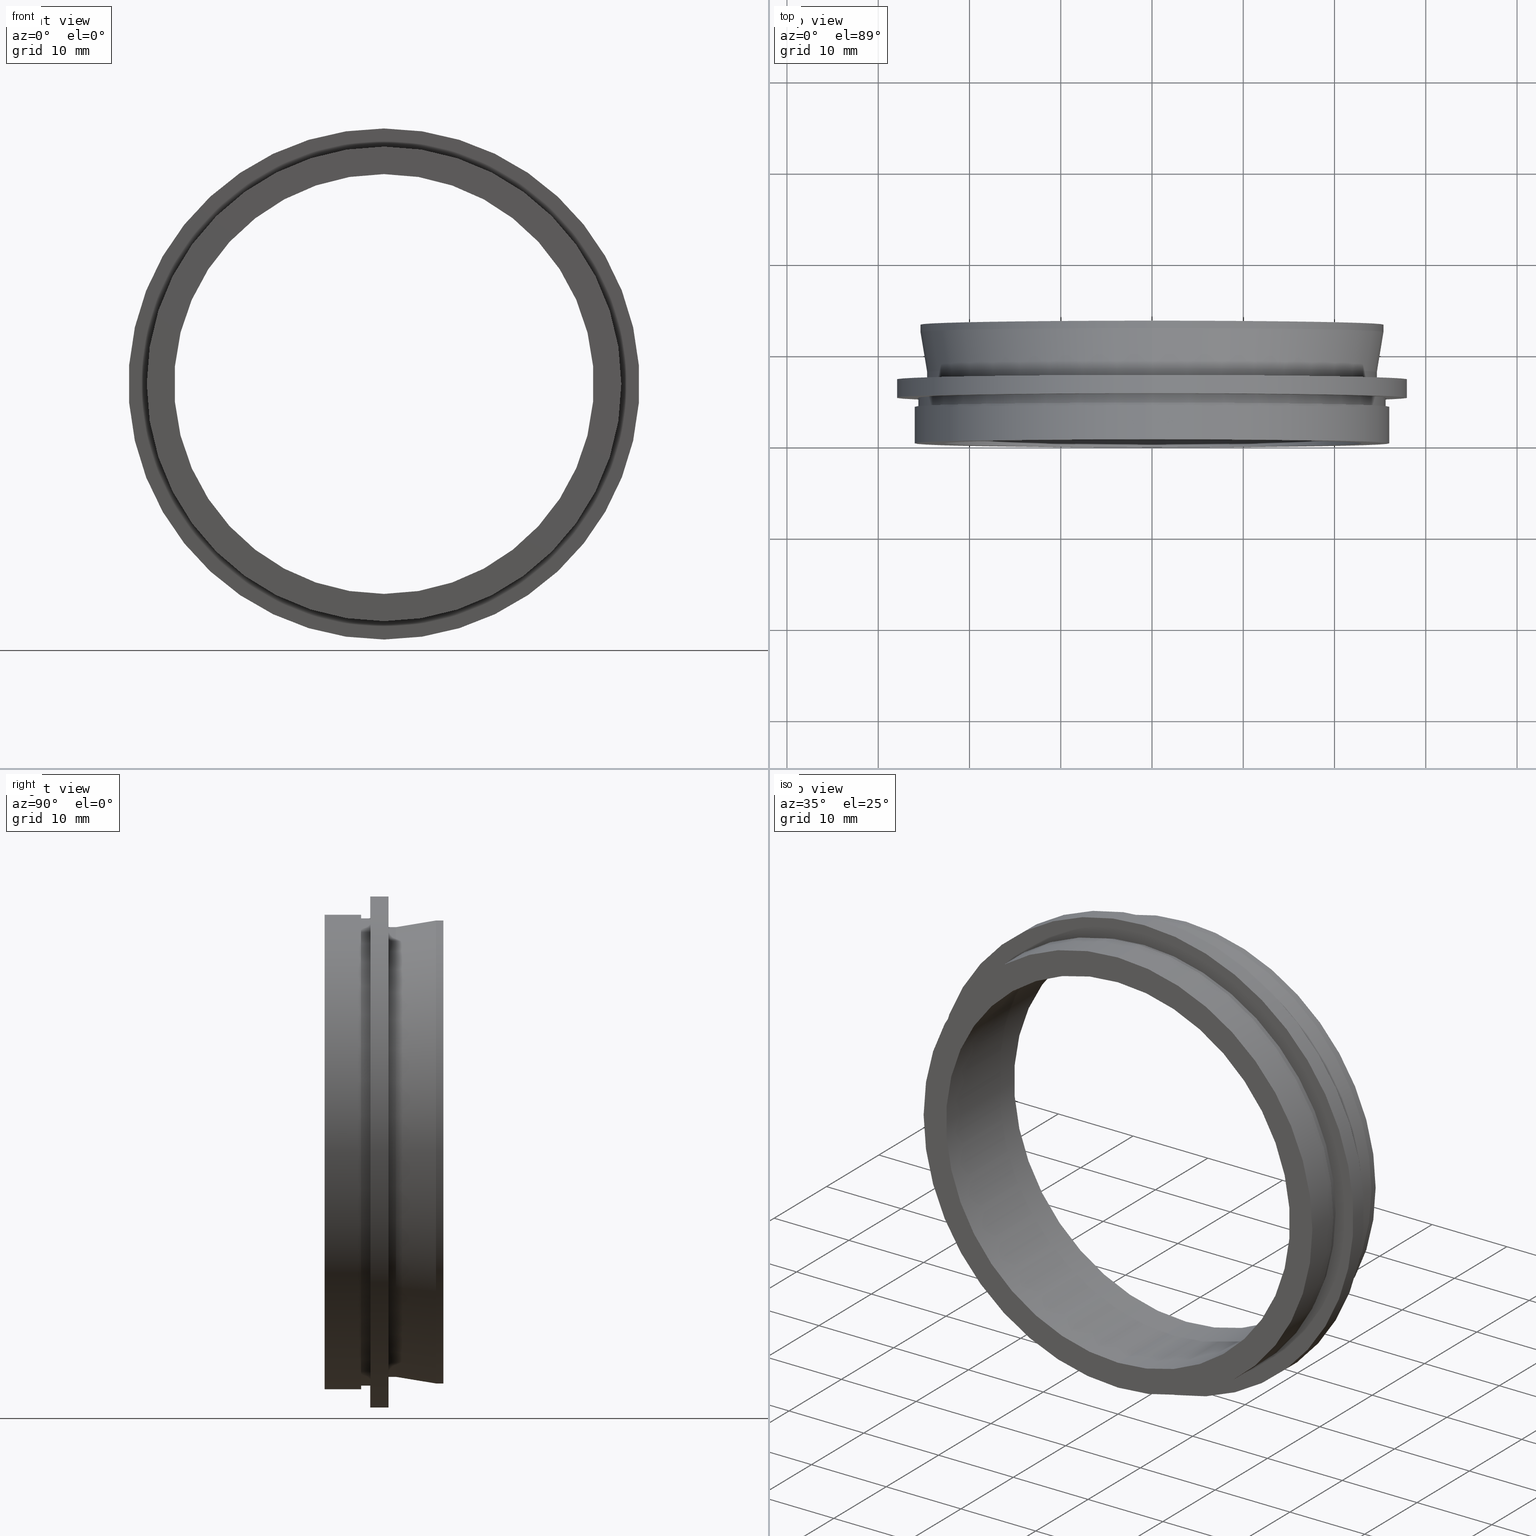
[diagram: canonical four-view strip — front | top / right | iso, engineering-drawing reading convention]
A machine part, canonical four-view strip (front | top / right | iso — engineering-drawing reading convention). The complete STEP part file that produces these views, byte-faithful:
ISO-10303-21;
HEADER;
FILE_DESCRIPTION (( 'STEP AP203' ),
    '1' );
FILE_NAME ('510001.STEP',
    '2019-09-29T08:14:22',
    ( '' ),
    ( '' ),
    'SwSTEP 2.0',
    'SolidWorks 2016',
    '' );
FILE_SCHEMA (( 'CONFIG_CONTROL_DESIGN' ));
ENDSEC;

DATA;
#1 = LINE ( 'NONE', #381, #542 ) ;
#2 = DIRECTION ( 'NONE',  ( -0.0000000000000000000, -1.000000000000000000, -0.0000000000000000000 ) ) ;
#3 = EDGE_CURVE ( 'NONE', #626, #334, #116, .T. ) ;
#4 = ORIENTED_EDGE ( 'NONE', *, *, #171, .F. ) ;
#5 = APPROVAL_PERSON_ORGANIZATION ( #179, #421, #40 ) ;
#6 = ORIENTED_EDGE ( 'NONE', *, *, #400, .T. ) ;
#7 = CIRCLE ( 'NONE', #582, 28.00000000000000000 ) ;
#8 = CARTESIAN_POINT ( 'NONE',  ( 0.0000000000000000000, 13.00000000000000200, 0.0000000000000000000 ) ) ;
#9 = ADVANCED_FACE ( 'NONE', ( #644 ), #365, .T. ) ;
#10 = LOCAL_TIME ( 16, 14, 22.00000000000000000, #240 ) ;
#11 = CC_DESIGN_APPROVAL ( #421, ( #442 ) ) ;
#12 = EDGE_CURVE ( 'NONE', #626, #457, #235, .T. ) ;
#13 = DIRECTION ( 'NONE',  ( -0.0000000000000000000, -1.000000000000000000, -0.0000000000000000000 ) ) ;
#14 = VERTEX_POINT ( 'NONE', #250 ) ;
#15 = CYLINDRICAL_SURFACE ( 'NONE', #39, 24.63500000000000200 ) ;
#16 = DIRECTION ( 'NONE',  ( 0.0000000000000000000, 0.0000000000000000000, -1.000000000000000000 ) ) ;
#17 = AXIS2_PLACEMENT_3D ( 'NONE', #502, #602, #190 ) ;
#18 = DIRECTION ( 'NONE',  ( 0.0000000000000000000, 0.0000000000000000000, -1.000000000000000000 ) ) ;
#19 = CARTESIAN_POINT ( 'NONE',  ( 0.0000000000000000000, 0.0000000000000000000, 0.0000000000000000000 ) ) ;
#20 = APPROVAL ( #201, 'δָ��' ) ;
#21 = ORIENTED_EDGE ( 'NONE', *, *, #272, .F. ) ;
#22 = CARTESIAN_POINT ( 'NONE',  ( 0.0000000000000000000, 0.0000000000000000000, 0.0000000000000000000 ) ) ;
#23 = PERSON_AND_ORGANIZATION ( #370, #165 ) ;
#24 = ORIENTED_EDGE ( 'NONE', *, *, #496, .F. ) ;
#25 = CIRCLE ( 'NONE', #492, 23.00000000000000000 ) ;
#26 = UNCERTAINTY_MEASURE_WITH_UNIT (LENGTH_MEASURE( 1.000000000000000100E-005 ), #31, 'distance_accuracy_value', 'NONE');
#27 = DIRECTION ( 'NONE',  ( -0.0000000000000000000, -1.000000000000000000, -0.0000000000000000000 ) ) ;
#28 = DIRECTION ( 'NONE',  ( -0.0000000000000000000, -1.000000000000000000, -0.0000000000000000000 ) ) ;
#29 = EDGE_CURVE ( 'NONE', #177, #334, #99, .T. ) ;
#30 = CARTESIAN_POINT ( 'NONE',  ( 0.0000000000000000000, 12.20000000000000100, 0.0000000000000000000 ) ) ;
#31 =( LENGTH_UNIT ( ) NAMED_UNIT ( * ) SI_UNIT ( .MILLI., .METRE. ) );
#32 = CARTESIAN_POINT ( 'NONE',  ( 0.0000000000000000000, 12.20000000000000100, 0.0000000000000000000 ) ) ;
#33 = MECHANICAL_CONTEXT ( 'NONE', #454, 'mechanical' ) ;
#34 = VERTEX_POINT ( 'NONE', #418 ) ;
#35 = PLANE ( 'NONE',  #73 ) ;
#36 = SECURITY_CLASSIFICATION_LEVEL ( 'unclassified' ) ;
#37 = CYLINDRICAL_SURFACE ( 'NONE', #613, 25.60000000000000100 ) ;
#38 = DIRECTION ( 'NONE',  ( 0.0000000000000000000, 0.0000000000000000000, -1.000000000000000000 ) ) ;
#39 = AXIS2_PLACEMENT_3D ( 'NONE', #61, #174, #276 ) ;
#40 = APPROVAL_ROLE ( '' ) ;
#41 = MECHANICAL_CONTEXT ( 'NONE', #82, 'mechanical' ) ;
#42 = AXIS2_PLACEMENT_3D ( 'NONE', #309, #570, #329 ) ;
#43 = EDGE_LOOP ( 'NONE', ( #325, #534 ) ) ;
#44 = ORIENTED_EDGE ( 'NONE', *, *, #113, .T. ) ;
#45 = FACE_OUTER_BOUND ( 'NONE', #56, .T. ) ;
#46 = APPROVAL_STATUS ( 'not_yet_approved' ) ;
#47 = DIRECTION ( 'NONE',  ( -0.0000000000000000000, -1.000000000000000000, -0.0000000000000000000 ) ) ;
#48 = CC_DESIGN_DATE_AND_TIME_ASSIGNMENT ( #344, #567, ( #519 ) ) ;
#49 = ORIENTED_EDGE ( 'NONE', *, *, #237, .F. ) ;
#50 = EDGE_CURVE ( 'NONE', #107, #177, #515, .T. ) ;
#51 = ADVANCED_FACE ( 'NONE', ( #498 ), #150, .T. ) ;
#52 = DIRECTION ( 'NONE',  ( -0.0000000000000000000, -1.000000000000000000, -0.0000000000000000000 ) ) ;
#53 = DIRECTION ( 'NONE',  ( 0.0000000000000000000, 0.0000000000000000000, -1.000000000000000000 ) ) ;
#54 = AXIS2_PLACEMENT_3D ( 'NONE', #609, #463, #204 ) ;
#55 = ORIENTED_EDGE ( 'NONE', *, *, #400, .F. ) ;
#56 = EDGE_LOOP ( 'NONE', ( #70, #269 ) ) ;
#57 = CIRCLE ( 'NONE', #125, 26.00000000000000000 ) ;
#58 = CC_DESIGN_APPROVAL ( #20, ( #593 ) ) ;
#59 = DIRECTION ( 'NONE',  ( -0.0000000000000000000, -1.000000000000000000, -0.0000000000000000000 ) ) ;
#60 = EDGE_CURVE ( 'NONE', #404, #548, #332, .T. ) ;
#61 = CARTESIAN_POINT ( 'NONE',  ( 0.0000000000000000000, 0.0000000000000000000, 0.0000000000000000000 ) ) ;
#62 = ORIENTED_EDGE ( 'NONE', *, *, #134, .T. ) ;
#63 = ORIENTED_EDGE ( 'NONE', *, *, #535, .F. ) ;
#64 = CARTESIAN_POINT ( 'NONE',  ( -28.00000000000000000, 5.000000000000002700, 0.0000000000000000000 ) ) ;
#65 = PERSON_AND_ORGANIZATION ( #370, #165 ) ;
#66 = LINE ( 'NONE', #508, #198 ) ;
#67 = CARTESIAN_POINT ( 'NONE',  ( 0.0000000000000000000, 0.0000000000000000000, -25.60000000000000100 ) ) ;
#68 = DIRECTION ( 'NONE',  ( 0.0000000000000000000, 0.0000000000000000000, -1.000000000000000000 ) ) ;
#69 = AXIS2_PLACEMENT_3D ( 'NONE', #22, #497, #68 ) ;
#70 = ORIENTED_EDGE ( 'NONE', *, *, #535, .T. ) ;
#71 = EDGE_LOOP ( 'NONE', ( #565, #262, #213, #397 ) ) ;
#72 = LINE ( 'NONE', #77, #277 ) ;
#73 = AXIS2_PLACEMENT_3D ( 'NONE', #507, #443, #649 ) ;
#74 = CALENDAR_DATE ( 2019, 29, 9 ) ;
#75 = CARTESIAN_POINT ( 'NONE',  ( 0.0000000000000000000, 0.0000000000000000000, 0.0000000000000000000 ) ) ;
#76 = DIRECTION ( 'NONE',  ( -0.0000000000000000000, -1.000000000000000000, -0.0000000000000000000 ) ) ;
#77 = CARTESIAN_POINT ( 'NONE',  ( 3.184081677783118200E-015, 0.0000000000000000000, 26.00000000000000000 ) ) ;
#78 = VECTOR ( 'NONE', #401, 1000.000000000000000 ) ;
#79 = PERSON_AND_ORGANIZATION_ROLE ( 'creator' ) ;
#80 = ORIENTED_EDGE ( 'NONE', *, *, #29, .F. ) ;
#81 = CIRCLE ( 'NONE', #403, 28.00000000000000000 ) ;
#82 = APPLICATION_CONTEXT ( 'configuration controlled 3d designs of mechanical parts and assemblies' ) ;
#83 = AXIS2_PLACEMENT_3D ( 'NONE', #428, #59, #426 ) ;
#84 = COORDINATED_UNIVERSAL_TIME_OFFSET ( 8, 0, .AHEAD. ) ;
#85 = CARTESIAN_POINT ( 'NONE',  ( 0.0000000000000000000, 7.000000000000003600, -24.63500000000000200 ) ) ;
#86 = DATE_TIME_ROLE ( 'classification_date' ) ;
#87 = CARTESIAN_POINT ( 'NONE',  ( 0.0000000000000000000, 0.0000000000000000000, -23.00000000000000000 ) ) ;
#88 = CARTESIAN_POINT ( 'NONE',  ( 0.0000000000000000000, -8.673617379884035500E-016, 0.0000000000000000000 ) ) ;
#89 = AXIS2_PLACEMENT_3D ( 'NONE', #664, #47, #412 ) ;
#90 = VERTEX_POINT ( 'NONE', #104 ) ;
#91 = DIRECTION ( 'NONE',  ( -0.0000000000000000000, -1.000000000000000000, -0.0000000000000000000 ) ) ;
#92 = VERTEX_POINT ( 'NONE', #624 ) ;
#93 = FACE_BOUND ( 'NONE', #358, .T. ) ;
#94 = CARTESIAN_POINT ( 'NONE',  ( 0.0000000000000000000, 0.0000000000000000000, 0.0000000000000000000 ) ) ;
#95 = CC_DESIGN_SECURITY_CLASSIFICATION ( #593, ( #575 ) ) ;
#96 = CALENDAR_DATE ( 2019, 29, 9 ) ;
#97 = APPROVAL_ROLE ( '' ) ;
#98 = PRODUCT_RELATED_PRODUCT_CATEGORY ( 'detail', '', ( #103 ) ) ;
#99 = CIRCLE ( 'NONE', #652, 25.36499999999999800 ) ;
#100 = EDGE_CURVE ( 'NONE', #588, #108, #109, .T. ) ;
#101 = CIRCLE ( 'NONE', #478, 23.00000000000000000 ) ;
#102 = ADVANCED_FACE ( 'NONE', ( #573 ), #197, .T. ) ;
#103 = PRODUCT ( '510001', '510001', '', ( #41 ) ) ;
#104 = CARTESIAN_POINT ( 'NONE',  ( 0.0000000000000000000, 5.000000000000001800, -25.60000000000000100 ) ) ;
#105 = ADVANCED_BREP_SHAPE_REPRESENTATION ( '510001', ( #419, #321 ), #379 ) ;
#106 = CARTESIAN_POINT ( 'NONE',  ( 3.135095805817224400E-015, 0.0000000000000000000, 25.60000000000000100 ) ) ;
#107 = VERTEX_POINT ( 'NONE', #356 ) ;
#108 = VERTEX_POINT ( 'NONE', #530 ) ;
#109 = CIRCLE ( 'NONE', #641, 26.00000000000000000 ) ;
#110 = EDGE_CURVE ( 'NONE', #108, #588, #549, .T. ) ;
#111 = ADVANCED_FACE ( 'NONE', ( #270, #537 ), #305, .F. ) ;
#112 = PERSON_AND_ORGANIZATION ( #370, #165 ) ;
#113 = EDGE_CURVE ( 'NONE', #14, #92, #388, .T. ) ;
#114 = PLANE ( 'NONE',  #586 ) ;
#115 = DATE_AND_TIME ( #253, #394 ) ;
#116 = LINE ( 'NONE', #155, #78 ) ;
#117 = ORIENTED_EDGE ( 'NONE', *, *, #237, .T. ) ;
#118 = FACE_OUTER_BOUND ( 'NONE', #654, .T. ) ;
#119 = ADVANCED_FACE ( 'NONE', ( #460 ), #343, .F. ) ;
#120 = CARTESIAN_POINT ( 'NONE',  ( 0.0000000000000000000, 7.800000000000005200, 24.63500000000000200 ) ) ;
#121 = AXIS2_PLACEMENT_3D ( 'NONE', #145, #455, #453 ) ;
#122 = DESIGN_CONTEXT ( 'detailed design', #149, 'design' ) ;
#123 = ORIENTED_EDGE ( 'NONE', *, *, #369, .T. ) ;
#124 = ORIENTED_EDGE ( 'NONE', *, *, #662, .T. ) ;
#125 = AXIS2_PLACEMENT_3D ( 'NONE', #335, #241, #289 ) ;
#126 = DIRECTION ( 'NONE',  ( -0.0000000000000000000, -1.000000000000000000, -0.0000000000000000000 ) ) ;
#127 = PRODUCT_RELATED_PRODUCT_CATEGORY ( 'detail', '', ( #469 ) ) ;
#128 = PERSON_AND_ORGANIZATION ( #370, #165 ) ;
#129 = EDGE_LOOP ( 'NONE', ( #24, #541, #660, #21 ) ) ;
#130 = CALENDAR_DATE ( 2019, 29, 9 ) ;
#131 = ORIENTED_EDGE ( 'NONE', *, *, #448, .F. ) ;
#132 = FACE_OUTER_BOUND ( 'NONE', #292, .T. ) ;
#133 = DIRECTION ( 'NONE',  ( 0.0000000000000000000, 0.0000000000000000000, -1.000000000000000000 ) ) ;
#134 = EDGE_CURVE ( 'NONE', #548, #578, #256, .T. ) ;
#135 = DIRECTION ( 'NONE',  ( 0.0000000000000000000, 0.0000000000000000000, -1.000000000000000000 ) ) ;
#136 = DIRECTION ( 'NONE',  ( -0.0000000000000000000, -1.000000000000000000, -0.0000000000000000000 ) ) ;
#137 = DATE_TIME_ROLE ( 'creation_date' ) ;
#138 = CARTESIAN_POINT ( 'NONE',  ( 0.0000000000000000000, 13.00000000000000200, -25.36499999999999800 ) ) ;
#139 = CARTESIAN_POINT ( 'NONE',  ( 0.0000000000000000000, 0.0000000000000000000, 0.0000000000000000000 ) ) ;
#140 = VERTEX_POINT ( 'NONE', #557 ) ;
#141 = CIRCLE ( 'NONE', #512, 28.00000000000000000 ) ;
#142 = CARTESIAN_POINT ( 'NONE',  ( 0.0000000000000000000, 4.000000000000001800, 0.0000000000000000000 ) ) ;
#143 = PERSON_AND_ORGANIZATION_ROLE ( 'design_owner' ) ;
#144 = AXIS2_PLACEMENT_3D ( 'NONE', #290, #604, #651 ) ;
#145 = CARTESIAN_POINT ( 'NONE',  ( 0.0000000000000000000, 5.000000000000001800, 0.0000000000000000000 ) ) ;
#146 = AXIS2_PLACEMENT_3D ( 'NONE', #32, #245, #606 ) ;
#147 = APPROVAL_DATE_TIME ( #346, #158 ) ;
#148 = ORIENTED_EDGE ( 'NONE', *, *, #648, .F. ) ;
#149 = APPLICATION_CONTEXT ( 'configuration controlled 3d designs of mechanical parts and assemblies' ) ;
#150 = CYLINDRICAL_SURFACE ( 'NONE', #436, 24.63500000000000200 ) ;
#151 = CYLINDRICAL_SURFACE ( 'NONE', #175, 28.00000000000000000 ) ;
#152 = LOCAL_TIME ( 16, 14, 22.00000000000000000, #284 ) ;
#153 = APPLICATION_PROTOCOL_DEFINITION ( 'international standard', 'config_control_design', 1994, #149 ) ;
#154 = PERSON_AND_ORGANIZATION ( #370, #165 ) ;
#155 = CARTESIAN_POINT ( 'NONE',  ( 3.106316606037261500E-015, 12.20000000000000100, -25.36499999999999800 ) ) ;
#156 = ADVANCED_FACE ( 'NONE', ( #118 ), #293, .T. ) ;
#157 = DIRECTION ( 'NONE',  ( 0.0000000000000000000, 0.0000000000000000000, -1.000000000000000000 ) ) ;
#158 = APPROVAL ( #446, 'δָ��' ) ;
#159 = VERTEX_POINT ( 'NONE', #559 ) ;
#160 = CIRCLE ( 'NONE', #252, 24.63500000000000200 ) ;
#161 = ADVANCED_FACE ( 'NONE', ( #640 ), #491, .F. ) ;
#162 = DIRECTION ( 'NONE',  ( -0.0000000000000000000, -1.000000000000000000, -0.0000000000000000000 ) ) ;
#163 = EDGE_CURVE ( 'NONE', #611, #499, #57, .T. ) ;
#164 = ORIENTED_EDGE ( 'NONE', *, *, #29, .T. ) ;
#165 = ORGANIZATION ( 'δָ��', 'δָ��', '' ) ;
#166 = EDGE_LOOP ( 'NONE', ( #214, #639 ) ) ;
#167 = VECTOR ( 'NONE', #430, 1000.000000000000000 ) ;
#168 = CARTESIAN_POINT ( 'NONE',  ( 0.0000000000000000000, 4.000000000000000900, 0.0000000000000000000 ) ) ;
#169 = DIRECTION ( 'NONE',  ( 0.0000000000000000000, 0.0000000000000000000, -1.000000000000000000 ) ) ;
#170 = ADVANCED_FACE ( 'NONE', ( #215, #93 ), #35, .F. ) ;
#171 = EDGE_CURVE ( 'NONE', #220, #299, #431, .T. ) ;
#172 = EDGE_LOOP ( 'NONE', ( #415, #490, #117, #196 ) ) ;
#173 = FACE_OUTER_BOUND ( 'NONE', #275, .T. ) ;
#174 = DIRECTION ( 'NONE',  ( -0.0000000000000000000, -1.000000000000000000, -0.0000000000000000000 ) ) ;
#175 = AXIS2_PLACEMENT_3D ( 'NONE', #545, #382, #18 ) ;
#176 = CARTESIAN_POINT ( 'NONE',  ( 0.0000000000000000000, 5.000000000000002700, 0.0000000000000000000 ) ) ;
#177 = VERTEX_POINT ( 'NONE', #504 ) ;
#178 = CARTESIAN_POINT ( 'NONE',  ( 0.0000000000000000000, 4.000000000000001800, -25.60000000000000100 ) ) ;
#179 = PERSON_AND_ORGANIZATION ( #370, #165 ) ;
#180 = FACE_OUTER_BOUND ( 'NONE', #341, .T. ) ;
#181 = AXIS2_PLACEMENT_3D ( 'NONE', #234, #666, #169 ) ;
#182 = CIRCLE ( 'NONE', #628, 25.36499999999999800 ) ;
#183 = CARTESIAN_POINT ( 'NONE',  ( 3.016917389699504500E-015, 7.000000000000003600, 24.63500000000000200 ) ) ;
#184 = DIRECTION ( 'NONE',  ( 0.0000000000000000000, 0.0000000000000000000, -1.000000000000000000 ) ) ;
#185 = DIRECTION ( 'NONE',  ( -0.0000000000000000000, -1.000000000000000000, -0.0000000000000000000 ) ) ;
#186 = APPROVAL_ROLE ( '' ) ;
#187 = ORIENTED_EDGE ( 'NONE', *, *, #304, .T. ) ;
#188 = DATE_AND_TIME ( #351, #152 ) ;
#189 = AXIS2_PLACEMENT_3D ( 'NONE', #139, #191, #603 ) ;
#190 = DIRECTION ( 'NONE',  ( 0.0000000000000000000, 0.0000000000000000000, -1.000000000000000000 ) ) ;
#191 = DIRECTION ( 'NONE',  ( -0.0000000000000000000, -1.000000000000000000, -0.0000000000000000000 ) ) ;
#192 = COORDINATED_UNIVERSAL_TIME_OFFSET ( 8, 0, .AHEAD. ) ;
#193 = APPLICATION_CONTEXT ( 'configuration controlled 3d designs of mechanical parts and assemblies' ) ;
#194 = AXIS2_PLACEMENT_3D ( 'NONE', #75, #501, #389 ) ;
#195 = ORIENTED_EDGE ( 'NONE', *, *, #648, .T. ) ;
#196 = ORIENTED_EDGE ( 'NONE', *, *, #333, .F. ) ;
#197 = CYLINDRICAL_SURFACE ( 'NONE', #360, 26.00000000000000000 ) ;
#198 = VECTOR ( 'NONE', #399, 1000.000000000000000 ) ;
#199 = CC_DESIGN_DATE_AND_TIME_ASSIGNMENT ( #188, #137, ( #442 ) ) ;
#200 = DATE_AND_TIME ( #96, #380 ) ;
#201 = APPROVAL_STATUS ( 'not_yet_approved' ) ;
#202 = EDGE_CURVE ( 'NONE', #611, #588, #72, .T. ) ;
#203 = EDGE_LOOP ( 'NONE', ( #228, #326, #123, #645 ) ) ;
#204 = DIRECTION ( 'NONE',  ( 0.0000000000000000000, 0.0000000000000000000, -1.000000000000000000 ) ) ;
#205 = ORIENTED_EDGE ( 'NONE', *, *, #662, .F. ) ;
#206 = CARTESIAN_POINT ( 'NONE',  ( 0.0000000000000000000, 0.0000000000000000000, 0.0000000000000000000 ) ) ;
#207 = APPROVAL_ROLE ( '' ) ;
#208 = CALENDAR_DATE ( 2019, 29, 9 ) ;
#209 = ADVANCED_FACE ( 'NONE', ( #407 ), #612, .T. ) ;
#210 = DIRECTION ( 'NONE',  ( -0.0000000000000000000, -1.000000000000000000, -0.0000000000000000000 ) ) ;
#211 = DATE_AND_TIME ( #337, #486 ) ;
#212 = AXIS2_PLACEMENT_3D ( 'NONE', #19, #543, #184 ) ;
#213 = ORIENTED_EDGE ( 'NONE', *, *, #110, .F. ) ;
#214 = ORIENTED_EDGE ( 'NONE', *, *, #324, .F. ) ;
#215 = FACE_OUTER_BOUND ( 'NONE', #385, .T. ) ;
#216 = CARTESIAN_POINT ( 'NONE',  ( 0.0000000000000000000, -8.673617379884035500E-016, -23.00000000000000000 ) ) ;
#217 = ADVANCED_FACE ( 'NONE', ( #180 ), #646, .T. ) ;
#218 = DIRECTION ( 'NONE',  ( 0.0000000000000000000, -0.0000000000000000000, 1.000000000000000000 ) ) ;
#219 = VECTOR ( 'NONE', #525, 1000.000000000000000 ) ;
#220 = VERTEX_POINT ( 'NONE', #85 ) ;
#221 = CIRCLE ( 'NONE', #562, 28.00000000000000000 ) ;
#222 = CARTESIAN_POINT ( 'NONE',  ( 0.0000000000000000000, 12.20000000000000100, -25.36499999999999800 ) ) ;
#223 = DIRECTION ( 'NONE',  ( 0.0000000000000000000, -1.000000000000000000, -0.0000000000000000000 ) ) ;
#224 = APPROVAL ( #516, 'δָ��' ) ;
#225 = DIRECTION ( 'NONE',  ( 0.0000000000000000000, 0.0000000000000000000, -1.000000000000000000 ) ) ;
#226 = CARTESIAN_POINT ( 'NONE',  ( 3.184081677783118200E-015, -8.673617379884035500E-016, 26.00000000000000000 ) ) ;
#227 = EDGE_LOOP ( 'NONE', ( #595, #527 ) ) ;
#228 = ORIENTED_EDGE ( 'NONE', *, *, #12, .F. ) ;
#229 = CYLINDRICAL_SURFACE ( 'NONE', #69, 28.00000000000000000 ) ;
#230 = CARTESIAN_POINT ( 'NONE',  ( 0.0000000000000000000, 13.00000000000000200, 0.0000000000000000000 ) ) ;
#231 = DIRECTION ( 'NONE',  ( -0.0000000000000000000, -1.000000000000000000, -0.0000000000000000000 ) ) ;
#232 = PRODUCT_DEFINITION ( 'δ֪', '', #514, #122 ) ;
#233 = LOCAL_TIME ( 16, 14, 22.00000000000000000, #318 ) ;
#234 = CARTESIAN_POINT ( 'NONE',  ( 0.0000000000000000000, 4.000000000000001800, 0.0000000000000000000 ) ) ;
#235 = CIRCLE ( 'NONE', #264, 24.63500000000000200 ) ;
#236 = CIRCLE ( 'NONE', #121, 25.60000000000000100 ) ;
#237 = EDGE_CURVE ( 'NONE', #626, #220, #263, .T. ) ;
#238 = DIRECTION ( 'NONE',  ( 0.0000000000000000000, 0.0000000000000000000, 1.000000000000000000 ) ) ;
#239 = DIRECTION ( 'NONE',  ( -0.0000000000000000000, -1.000000000000000000, -0.0000000000000000000 ) ) ;
#240 = COORDINATED_UNIVERSAL_TIME_OFFSET ( 8, 0, .AHEAD. ) ;
#241 = DIRECTION ( 'NONE',  ( -0.0000000000000000000, -1.000000000000000000, -0.0000000000000000000 ) ) ;
#242 = CARTESIAN_POINT ( 'NONE',  ( -25.60000000000000100, 4.000000000000001800, 0.0000000000000000000 ) ) ;
#243 = CARTESIAN_POINT ( 'NONE',  ( 0.0000000000000000000, 0.0000000000000000000, -24.63500000000000200 ) ) ;
#244 = ORIENTED_EDGE ( 'NONE', *, *, #171, .T. ) ;
#245 = DIRECTION ( 'NONE',  ( 0.0000000000000000000, 1.000000000000000000, 0.0000000000000000000 ) ) ;
#246 = DIRECTION ( 'NONE',  ( 0.0000000000000000000, 0.0000000000000000000, -1.000000000000000000 ) ) ;
#247 = ORIENTED_EDGE ( 'NONE', *, *, #523, .F. ) ;
#248 = FACE_OUTER_BOUND ( 'NONE', #172, .T. ) ;
#249 = CC_DESIGN_PERSON_AND_ORGANIZATION_ASSIGNMENT ( #23, #610, ( #103 ) ) ;
#250 = CARTESIAN_POINT ( 'NONE',  ( 3.429011037612589300E-015, 7.000000000000002700, 28.00000000000000000 ) ) ;
#251 = DIRECTION ( 'NONE',  ( -0.0000000000000000000, -1.000000000000000000, -0.0000000000000000000 ) ) ;
#252 = AXIS2_PLACEMENT_3D ( 'NONE', #274, #427, #225 ) ;
#253 = CALENDAR_DATE ( 2019, 29, 9 ) ;
#254 = VECTOR ( 'NONE', #622, 1000.000000000000000 ) ;
#255 = EDGE_LOOP ( 'NONE', ( #632, #317, #438, #422 ) ) ;
#256 = CIRCLE ( 'NONE', #623, 25.60000000000000100 ) ;
#257 = PERSON_AND_ORGANIZATION ( #370, #165 ) ;
#258 = APPROVAL_PERSON_ORGANIZATION ( #590, #20, #207 ) ;
#259 = AXIS2_PLACEMENT_3D ( 'NONE', #242, #339, #246 ) ;
#260 = ADVANCED_FACE ( 'NONE', ( #596 ), #37, .T. ) ;
#261 = ORIENTED_EDGE ( 'NONE', *, *, #462, .T. ) ;
#262 = ORIENTED_EDGE ( 'NONE', *, *, #202, .T. ) ;
#263 = LINE ( 'NONE', #243, #398 ) ;
#264 = AXIS2_PLACEMENT_3D ( 'NONE', #563, #251, #656 ) ;
#265 = CC_DESIGN_APPROVAL ( #291, ( #232 ) ) ;
#266 = PLANE ( 'NONE',  #540 ) ;
#267 = VERTEX_POINT ( 'NONE', #138 ) ;
#268 = LOCAL_TIME ( 16, 14, 22.00000000000000000, #405 ) ;
#269 = ORIENTED_EDGE ( 'NONE', *, *, #577, .T. ) ;
#270 = FACE_BOUND ( 'NONE', #227, .T. ) ;
#271 = CALENDAR_DATE ( 2019, 29, 9 ) ;
#272 = EDGE_CURVE ( 'NONE', #474, #311, #655, .T. ) ;
#273 = DIRECTION ( 'NONE',  ( -0.0000000000000000000, -1.000000000000000000, -0.0000000000000000000 ) ) ;
#274 = CARTESIAN_POINT ( 'NONE',  ( 0.0000000000000000000, 7.000000000000003600, 0.0000000000000000000 ) ) ;
#275 = EDGE_LOOP ( 'NONE', ( #558, #44, #63, #298 ) ) ;
#276 = DIRECTION ( 'NONE',  ( 0.0000000000000000000, 0.0000000000000000000, -1.000000000000000000 ) ) ;
#277 = VECTOR ( 'NONE', #185, 1000.000000000000000 ) ;
#278 = AXIS2_PLACEMENT_3D ( 'NONE', #364, #585, #368 ) ;
#279 = DIRECTION ( 'NONE',  ( 0.0000000000000000000, 0.0000000000000000000, -1.000000000000000000 ) ) ;
#280 = AXIS2_PLACEMENT_3D ( 'NONE', #8, #320, #630 ) ;
#281 = EDGE_LOOP ( 'NONE', ( #608, #306, #579, #55 ) ) ;
#282 = PERSON_AND_ORGANIZATION ( #370, #165 ) ;
#283 = CIRCLE ( 'NONE', #605, 23.00000000000000000 ) ;
#284 = COORDINATED_UNIVERSAL_TIME_OFFSET ( 8, 0, .AHEAD. ) ;
#285 = DIRECTION ( 'NONE',  ( -0.0000000000000000000, -1.000000000000000000, -0.0000000000000000000 ) ) ;
#286 = APPROVAL_STATUS ( 'not_yet_approved' ) ;
#287 = CARTESIAN_POINT ( 'NONE',  ( 0.0000000000000000000, 0.0000000000000000000, 0.0000000000000000000 ) ) ;
#288 = PERSON_AND_ORGANIZATION_ROLE ( 'creator' ) ;
#289 = DIRECTION ( 'NONE',  ( 0.0000000000000000000, 0.0000000000000000000, -1.000000000000000000 ) ) ;
#290 = CARTESIAN_POINT ( 'NONE',  ( 0.0000000000000000000, 0.0000000000000000000, 0.0000000000000000000 ) ) ;
#291 = APPROVAL ( #46, 'δָ��' ) ;
#292 = EDGE_LOOP ( 'NONE', ( #375, #261, #124, #80 ) ) ;
#293 = CYLINDRICAL_SURFACE ( 'NONE', #17, 25.36499999999999800 ) ;
#294 = DIRECTION ( 'NONE',  ( -0.0000000000000000000, -1.000000000000000000, -0.0000000000000000000 ) ) ;
#295 = CARTESIAN_POINT ( 'NONE',  ( 0.0000000000000000000, 0.0000000000000000000, -25.36499999999999800 ) ) ;
#296 = AXIS2_PLACEMENT_3D ( 'NONE', #308, #574, #524 ) ;
#297 = SECURITY_CLASSIFICATION_LEVEL ( 'unclassified' ) ;
#298 = ORIENTED_EDGE ( 'NONE', *, *, #556, .F. ) ;
#299 = VERTEX_POINT ( 'NONE', #183 ) ;
#300 = VECTOR ( 'NONE', #52, 1000.000000000000000 ) ;
#301 = CC_DESIGN_PERSON_AND_ORGANIZATION_ASSIGNMENT ( #347, #513, ( #232 ) ) ;
#302 = LINE ( 'NONE', #295, #551 ) ;
#303 = APPROVAL_PERSON_ORGANIZATION ( #569, #224, #348 ) ;
#304 = EDGE_CURVE ( 'NONE', #578, #548, #528, .T. ) ;
#305 = PLANE ( 'NONE',  #296 ) ;
#306 = ORIENTED_EDGE ( 'NONE', *, *, #60, .T. ) ;
#307 = CIRCLE ( 'NONE', #310, 26.00000000000000000 ) ;
#308 = CARTESIAN_POINT ( 'NONE',  ( -26.00000000000000000, -8.673617379884035500E-016, 0.0000000000000000000 ) ) ;
#309 = CARTESIAN_POINT ( 'NONE',  ( 0.0000000000000000000, 0.0000000000000000000, 0.0000000000000000000 ) ) ;
#310 = AXIS2_PLACEMENT_3D ( 'NONE', #168, #28, #591 ) ;
#311 = VERTEX_POINT ( 'NONE', #216 ) ;
#312 = DATE_AND_TIME ( #130, #268 ) ;
#313 = CIRCLE ( 'NONE', #280, 23.00000000000000000 ) ;
#314 = DIRECTION ( 'NONE',  ( 0.0000000000000000000, 1.000000000000000000, 0.0000000000000000000 ) ) ;
#315 = DIRECTION ( 'NONE',  ( 0.0000000000000000000, 0.0000000000000000000, -1.000000000000000000 ) ) ;
#316 = CARTESIAN_POINT ( 'NONE',  ( 0.0000000000000000000, 7.000000000000002700, 0.0000000000000000000 ) ) ;
#317 = ORIENTED_EDGE ( 'NONE', *, *, #345, .F. ) ;
#318 = COORDINATED_UNIVERSAL_TIME_OFFSET ( 8, 0, .AHEAD. ) ;
#319 = FACE_OUTER_BOUND ( 'NONE', #465, .T. ) ;
#320 = DIRECTION ( 'NONE',  ( -0.0000000000000000000, -1.000000000000000000, -0.0000000000000000000 ) ) ;
#321 = AXIS2_PLACEMENT_3D ( 'NONE', #338, #560, #607 ) ;
#322 = CARTESIAN_POINT ( 'NONE',  ( 0.0000000000000000000, 13.00000000000000200, -23.00000000000000000 ) ) ;
#323 = DIRECTION ( 'NONE',  ( 0.0000000000000000000, 0.0000000000000000000, -1.000000000000000000 ) ) ;
#324 = EDGE_CURVE ( 'NONE', #140, #14, #141, .T. ) ;
#325 = ORIENTED_EDGE ( 'NONE', *, *, #599, .F. ) ;
#326 = ORIENTED_EDGE ( 'NONE', *, *, #3, .T. ) ;
#327 = FACE_BOUND ( 'NONE', #43, .T. ) ;
#328 = CC_DESIGN_DATE_AND_TIME_ASSIGNMENT ( #485, #458, ( #232 ) ) ;
#329 = DIRECTION ( 'NONE',  ( 0.0000000000000000000, 0.0000000000000000000, -1.000000000000000000 ) ) ;
#330 = CALENDAR_DATE ( 2019, 29, 9 ) ;
#331 = CARTESIAN_POINT ( 'NONE',  ( 0.0000000000000000000, 13.00000000000000200, 0.0000000000000000000 ) ) ;
#332 = LINE ( 'NONE', #106, #254 ) ;
#333 = EDGE_CURVE ( 'NONE', #299, #220, #160, .T. ) ;
#334 = VERTEX_POINT ( 'NONE', #222 ) ;
#335 = CARTESIAN_POINT ( 'NONE',  ( 0.0000000000000000000, 4.000000000000000900, 0.0000000000000000000 ) ) ;
#336 = PERSON_AND_ORGANIZATION_ROLE ( 'design_supplier' ) ;
#337 = CALENDAR_DATE ( 2019, 29, 9 ) ;
#338 = CARTESIAN_POINT ( 'NONE',  ( 0.0000000000000000000, 0.0000000000000000000, 0.0000000000000000000 ) ) ;
#339 = DIRECTION ( 'NONE',  ( 0.0000000000000000000, -1.000000000000000000, -0.0000000000000000000 ) ) ;
#340 = CC_DESIGN_PERSON_AND_ORGANIZATION_ASSIGNMENT ( #282, #143, ( #469 ) ) ;
#341 = EDGE_LOOP ( 'NONE', ( #653, #247, #526, #164 ) ) ;
#342 = ORIENTED_EDGE ( 'NONE', *, *, #462, .F. ) ;
#343 = CYLINDRICAL_SURFACE ( 'NONE', #42, 23.00000000000000000 ) ;
#344 = DATE_AND_TIME ( #444, #10 ) ;
#345 = EDGE_CURVE ( 'NONE', #474, #34, #313, .T. ) ;
#346 = DATE_AND_TIME ( #330, #233 ) ;
#347 = PERSON_AND_ORGANIZATION ( #370, #165 ) ;
#348 = APPROVAL_ROLE ( '' ) ;
#349 = ORIENTED_EDGE ( 'NONE', *, *, #345, .T. ) ;
#350 = VECTOR ( 'NONE', #231, 1000.000000000000000 ) ;
#351 = CALENDAR_DATE ( 2019, 29, 9 ) ;
#352 = PERSON_AND_ORGANIZATION_ROLE ( 'creator' ) ;
#353 = CARTESIAN_POINT ( 'NONE',  ( 3.429011037612589300E-015, 0.0000000000000000000, 28.00000000000000000 ) ) ;
#354 = AXIS2_PLACEMENT_3D ( 'NONE', #638, #487, #323 ) ;
#355 = ADVANCED_FACE ( 'NONE', ( #327, #45 ), #266, .F. ) ;
#356 = CARTESIAN_POINT ( 'NONE',  ( 3.106316606037261500E-015, 13.00000000000000200, 25.36499999999999800 ) ) ;
#357 = ORIENTED_EDGE ( 'NONE', *, *, #50, .T. ) ;
#358 = EDGE_LOOP ( 'NONE', ( #349, #564 ) ) ;
#359 = DATE_AND_TIME ( #208, #521 ) ;
#360 = AXIS2_PLACEMENT_3D ( 'NONE', #206, #162, #157 ) ;
#361 = ADVANCED_FACE ( 'NONE', ( #627, #518 ), #114, .F. ) ;
#362 = PERSON_AND_ORGANIZATION ( #370, #165 ) ;
#363 = CC_DESIGN_PERSON_AND_ORGANIZATION_ASSIGNMENT ( #434, #392, ( #593 ) ) ;
#364 = CARTESIAN_POINT ( 'NONE',  ( 0.0000000000000000000, 5.000000000000001800, 0.0000000000000000000 ) ) ;
#365 = CYLINDRICAL_SURFACE ( 'NONE', #54, 25.60000000000000100 ) ;
#366 = ORIENTED_EDGE ( 'NONE', *, *, #425, .T. ) ;
#367 = LINE ( 'NONE', #386, #633 ) ;
#368 = DIRECTION ( 'NONE',  ( 0.0000000000000000000, 0.0000000000000000000, -1.000000000000000000 ) ) ;
#369 = EDGE_CURVE ( 'NONE', #334, #177, #440, .T. ) ;
#370 = PERSON ( 'δָ��', 'δָ��', 'δָ��', ('δָ��'), ('δָ��'), ('δָ��') ) ;
#371 = CARTESIAN_POINT ( 'NONE',  ( 3.135095805817224400E-015, 5.000000000000001800, 25.60000000000000100 ) ) ;
#372 = DIRECTION ( 'NONE',  ( -0.0000000000000000000, -1.000000000000000000, -0.0000000000000000000 ) ) ;
#373 = PRODUCT_DEFINITION_SHAPE ( 'NONE', 'NONE',  #442 ) ;
#374 = COORDINATED_UNIVERSAL_TIME_OFFSET ( 8, 0, .AHEAD. ) ;
#375 = ORIENTED_EDGE ( 'NONE', *, *, #50, .F. ) ;
#376 = CLOSED_SHELL ( 'NONE', ( #663, #9, #479, #51, #209, #156, #119, #111, #161, #170, #476, #217, #416, #361, #471, #355, #260, #621, #102 ) ) ;
#377 = CIRCLE ( 'NONE', #636, 24.63500000000000200 ) ;
#378 = CARTESIAN_POINT ( 'NONE',  ( 0.0000000000000000000, 5.000000000000002700, 0.0000000000000000000 ) ) ;
#379 =( GEOMETRIC_REPRESENTATION_CONTEXT ( 3 ) GLOBAL_UNCERTAINTY_ASSIGNED_CONTEXT ( ( #26 ) ) GLOBAL_UNIT_ASSIGNED_CONTEXT ( ( #31, #390, #600 ) ) REPRESENTATION_CONTEXT ( 'NONE', 'WORKASPACE' ) );
#380 = LOCAL_TIME ( 16, 14, 22.00000000000000000, #494 ) ;
#381 = CARTESIAN_POINT ( 'NONE',  ( 3.016917389699504500E-015, 0.0000000000000000000, 24.63500000000000200 ) ) ;
#382 = DIRECTION ( 'NONE',  ( -0.0000000000000000000, -1.000000000000000000, -0.0000000000000000000 ) ) ;
#383 = EDGE_CURVE ( 'NONE', #404, #90, #451, .T. ) ;
#384 = CARTESIAN_POINT ( 'NONE',  ( 0.0000000000000000000, 7.000000000000003600, 0.0000000000000000000 ) ) ;
#385 = EDGE_LOOP ( 'NONE', ( #148, #342 ) ) ;
#386 = CARTESIAN_POINT ( 'NONE',  ( 0.0000000000000000000, 0.0000000000000000000, -28.00000000000000000 ) ) ;
#387 = ORIENTED_EDGE ( 'NONE', *, *, #110, .T. ) ;
#388 = LINE ( 'NONE', #353, #300 ) ;
#389 = DIRECTION ( 'NONE',  ( 0.0000000000000000000, 0.0000000000000000000, -1.000000000000000000 ) ) ;
#390 =( NAMED_UNIT ( * ) PLANE_ANGLE_UNIT ( ) SI_UNIT ( $, .RADIAN. ) );
#391 = DIRECTION ( 'NONE',  ( -0.0000000000000000000, -1.000000000000000000, -0.0000000000000000000 ) ) ;
#392 = PERSON_AND_ORGANIZATION_ROLE ( 'classification_officer' ) ;
#393 = CC_DESIGN_APPROVAL ( #550, ( #514 ) ) ;
#394 = LOCAL_TIME ( 16, 14, 22.00000000000000000, #374 ) ;
#395 = EDGE_LOOP ( 'NONE', ( #473, #510, #423, #509 ) ) ;
#396 = APPLICATION_PROTOCOL_DEFINITION ( 'international standard', 'config_control_design', 1994, #454 ) ;
#397 = ORIENTED_EDGE ( 'NONE', *, *, #425, .F. ) ;
#398 = VECTOR ( 'NONE', #27, 1000.000000000000000 ) ;
#399 = DIRECTION ( 'NONE',  ( 0.0000000000000000000, 0.9865148492742905600, 0.1636717818114160900 ) ) ;
#400 = EDGE_CURVE ( 'NONE', #90, #578, #580, .T. ) ;
#401 = DIRECTION ( 'NONE',  ( 2.004401237060946900E-017, 0.9865148492742905600, -0.1636717818114160900 ) ) ;
#402 = APPROVAL_STATUS ( 'not_yet_approved' ) ;
#403 = AXIS2_PLACEMENT_3D ( 'NONE', #176, #547, #16 ) ;
#404 = VERTEX_POINT ( 'NONE', #371 ) ;
#405 = COORDINATED_UNIVERSAL_TIME_OFFSET ( 8, 0, .AHEAD. ) ;
#406 = VERTEX_POINT ( 'NONE', #584 ) ;
#407 = FACE_OUTER_BOUND ( 'NONE', #203, .T. ) ;
#408 = FACE_OUTER_BOUND ( 'NONE', #71, .T. ) ;
#409 = CYLINDRICAL_SURFACE ( 'NONE', #189, 26.00000000000000000 ) ;
#410 = APPROVAL_DATE_TIME ( #200, #224 ) ;
#411 = EDGE_CURVE ( 'NONE', #311, #406, #25, .T. ) ;
#412 = DIRECTION ( 'NONE',  ( 0.0000000000000000000, 0.0000000000000000000, -1.000000000000000000 ) ) ;
#413 = DESIGN_CONTEXT ( 'detailed design', #193, 'design' ) ;
#414 = DIRECTION ( 'NONE',  ( -0.0000000000000000000, -1.000000000000000000, -0.0000000000000000000 ) ) ;
#415 = ORIENTED_EDGE ( 'NONE', *, *, #483, .F. ) ;
#416 = ADVANCED_FACE ( 'NONE', ( #248 ), #15, .T. ) ;
#417 = VECTOR ( 'NONE', #273, 1000.000000000000000 ) ;
#418 = CARTESIAN_POINT ( 'NONE',  ( 2.816687638038912400E-015, 13.00000000000000200, 23.00000000000000000 ) ) ;
#419 = MANIFOLD_SOLID_BREP ( '��ת1', #376 ) ;
#420 = COORDINATED_UNIVERSAL_TIME_OFFSET ( 8, 0, .AHEAD. ) ;
#421 = APPROVAL ( #286, 'δָ��' ) ;
#422 = ORIENTED_EDGE ( 'NONE', *, *, #411, .T. ) ;
#423 = ORIENTED_EDGE ( 'NONE', *, *, #556, .T. ) ;
#424 = FACE_OUTER_BOUND ( 'NONE', #395, .T. ) ;
#425 = EDGE_CURVE ( 'NONE', #499, #108, #511, .T. ) ;
#426 = DIRECTION ( 'NONE',  ( 0.0000000000000000000, 0.0000000000000000000, -1.000000000000000000 ) ) ;
#427 = DIRECTION ( 'NONE',  ( -0.0000000000000000000, -1.000000000000000000, -0.0000000000000000000 ) ) ;
#428 = CARTESIAN_POINT ( 'NONE',  ( 0.0000000000000000000, 12.20000000000000100, 0.0000000000000000000 ) ) ;
#429 = ORIENTED_EDGE ( 'NONE', *, *, #12, .T. ) ;
#430 = DIRECTION ( 'NONE',  ( -0.0000000000000000000, -1.000000000000000000, -0.0000000000000000000 ) ) ;
#431 = CIRCLE ( 'NONE', #544, 24.63500000000000200 ) ;
#432 = CC_DESIGN_APPROVAL ( #224, ( #519 ) ) ;
#433 = CARTESIAN_POINT ( 'NONE',  ( 0.0000000000000000000, 7.800000000000005200, 0.0000000000000000000 ) ) ;
#434 = PERSON_AND_ORGANIZATION ( #370, #165 ) ;
#435 = CARTESIAN_POINT ( 'NONE',  ( 0.0000000000000000000, 7.000000000000002700, 0.0000000000000000000 ) ) ;
#436 = AXIS2_PLACEMENT_3D ( 'NONE', #94, #414, #576 ) ;
#437 = CARTESIAN_POINT ( 'NONE',  ( 3.184081677783118200E-015, 4.000000000000000900, 26.00000000000000000 ) ) ;
#438 = ORIENTED_EDGE ( 'NONE', *, *, #272, .T. ) ;
#439 = EDGE_LOOP ( 'NONE', ( #517, #616, #366, #536 ) ) ;
#440 = CIRCLE ( 'NONE', #83, 25.36499999999999800 ) ;
#441 = DIRECTION ( 'NONE',  ( 0.0000000000000000000, 0.0000000000000000000, -1.000000000000000000 ) ) ;
#442 = PRODUCT_DEFINITION ( 'δ֪', '', #575, #413 ) ;
#443 = DIRECTION ( 'NONE',  ( 0.0000000000000000000, -1.000000000000000000, -0.0000000000000000000 ) ) ;
#444 = CALENDAR_DATE ( 2019, 29, 9 ) ;
#445 = DIRECTION ( 'NONE',  ( -0.0000000000000000000, -1.000000000000000000, -0.0000000000000000000 ) ) ;
#446 = APPROVAL_STATUS ( 'not_yet_approved' ) ;
#447 = CC_DESIGN_PERSON_AND_ORGANIZATION_ASSIGNMENT ( #154, #352, ( #514 ) ) ;
#448 = EDGE_CURVE ( 'NONE', #499, #611, #307, .T. ) ;
#449 = APPLICATION_PROTOCOL_DEFINITION ( 'international standard', 'config_control_design', 1994, #193 ) ;
#450 = ORIENTED_EDGE ( 'NONE', *, *, #163, .F. ) ;
#451 = CIRCLE ( 'NONE', #278, 25.60000000000000100 ) ;
#452 = APPROVAL_PERSON_ORGANIZATION ( #257, #291, #571 ) ;
#453 = DIRECTION ( 'NONE',  ( 0.0000000000000000000, 0.0000000000000000000, -1.000000000000000000 ) ) ;
#454 = APPLICATION_CONTEXT ( 'configuration controlled 3d designs of mechanical parts and assemblies' ) ;
#455 = DIRECTION ( 'NONE',  ( -0.0000000000000000000, -1.000000000000000000, -0.0000000000000000000 ) ) ;
#456 = CC_DESIGN_PERSON_AND_ORGANIZATION_ASSIGNMENT ( #128, #288, ( #575 ) ) ;
#457 = VERTEX_POINT ( 'NONE', #120 ) ;
#458 = DATE_TIME_ROLE ( 'creation_date' ) ;
#459 = EDGE_LOOP ( 'NONE', ( #187, #62 ) ) ;
#460 = FACE_OUTER_BOUND ( 'NONE', #129, .T. ) ;
#461 = APPROVAL_DATE_TIME ( #477, #550 ) ;
#462 = EDGE_CURVE ( 'NONE', #107, #267, #566, .T. ) ;
#463 = DIRECTION ( 'NONE',  ( -0.0000000000000000000, -1.000000000000000000, -0.0000000000000000000 ) ) ;
#464 = PERSON_AND_ORGANIZATION_ROLE ( 'classification_officer' ) ;
#465 = EDGE_LOOP ( 'NONE', ( #131, #450 ) ) ;
#466 = APPROVAL_PERSON_ORGANIZATION ( #65, #158, #186 ) ;
#467 = CARTESIAN_POINT ( 'NONE',  ( 0.0000000000000000000, 12.20000000000000100, 0.0000000000000000000 ) ) ;
#468 = CC_DESIGN_SECURITY_CLASSIFICATION ( #519, ( #514 ) ) ;
#469 = PRODUCT ( '510001', '510001', '', ( #33 ) ) ;
#470 = CARTESIAN_POINT ( 'NONE',  ( 0.0000000000000000000, -8.673617379884035500E-016, 0.0000000000000000000 ) ) ;
#471 = ADVANCED_FACE ( 'NONE', ( #424 ), #151, .T. ) ;
#472 = AXIS2_PLACEMENT_3D ( 'NONE', #30, #554, #238 ) ;
#473 = ORIENTED_EDGE ( 'NONE', *, *, #113, .F. ) ;
#474 = VERTEX_POINT ( 'NONE', #322 ) ;
#475 = APPROVAL_DATE_TIME ( #359, #20 ) ;
#476 = ADVANCED_FACE ( 'NONE', ( #132 ), #661, .T. ) ;
#477 = DATE_AND_TIME ( #74, #522 ) ;
#478 = AXIS2_PLACEMENT_3D ( 'NONE', #88, #239, #135 ) ;
#479 = ADVANCED_FACE ( 'NONE', ( #173 ), #229, .T. ) ;
#480 = ORIENTED_EDGE ( 'NONE', *, *, #369, .F. ) ;
#481 = CC_DESIGN_PERSON_AND_ORGANIZATION_ASSIGNMENT ( #362, #520, ( #514 ) ) ;
#482 = ORIENTED_EDGE ( 'NONE', *, *, #333, .T. ) ;
#483 = EDGE_CURVE ( 'NONE', #457, #299, #1, .T. ) ;
#484 = DIRECTION ( 'NONE',  ( 0.0000000000000000000, 0.0000000000000000000, -1.000000000000000000 ) ) ;
#485 = DATE_AND_TIME ( #271, #583 ) ;
#486 = LOCAL_TIME ( 16, 14, 22.00000000000000000, #192 ) ;
#487 = DIRECTION ( 'NONE',  ( -0.0000000000000000000, -1.000000000000000000, -0.0000000000000000000 ) ) ;
#488 = ORIENTED_EDGE ( 'NONE', *, *, #60, .F. ) ;
#489 = CARTESIAN_POINT ( 'NONE',  ( 0.0000000000000000000, 4.000000000000000900, -26.00000000000000000 ) ) ;
#490 = ORIENTED_EDGE ( 'NONE', *, *, #523, .T. ) ;
#491 = CYLINDRICAL_SURFACE ( 'NONE', #194, 23.00000000000000000 ) ;
#492 = AXIS2_PLACEMENT_3D ( 'NONE', #539, #13, #484 ) ;
#493 = DIRECTION ( 'NONE',  ( -0.0000000000000000000, -1.000000000000000000, -0.0000000000000000000 ) ) ;
#494 = COORDINATED_UNIVERSAL_TIME_OFFSET ( 8, 0, .AHEAD. ) ;
#495 = CARTESIAN_POINT ( 'NONE',  ( 2.816687638038912400E-015, 0.0000000000000000000, 23.00000000000000000 ) ) ;
#496 = EDGE_CURVE ( 'NONE', #34, #474, #283, .T. ) ;
#497 = DIRECTION ( 'NONE',  ( -0.0000000000000000000, -1.000000000000000000, -0.0000000000000000000 ) ) ;
#498 = FACE_OUTER_BOUND ( 'NONE', #546, .T. ) ;
#499 = VERTEX_POINT ( 'NONE', #489 ) ;
#500 = LINE ( 'NONE', #495, #350 ) ;
#501 = DIRECTION ( 'NONE',  ( -0.0000000000000000000, -1.000000000000000000, -0.0000000000000000000 ) ) ;
#502 = CARTESIAN_POINT ( 'NONE',  ( 0.0000000000000000000, 0.0000000000000000000, 0.0000000000000000000 ) ) ;
#503 = DIRECTION ( 'NONE',  ( -0.0000000000000000000, -1.000000000000000000, -0.0000000000000000000 ) ) ;
#504 = CARTESIAN_POINT ( 'NONE',  ( 3.106316606037261500E-015, 12.20000000000000100, 25.36499999999999800 ) ) ;
#505 = DIRECTION ( 'NONE',  ( 0.0000000000000000000, 0.0000000000000000000, -1.000000000000000000 ) ) ;
#506 = CC_DESIGN_PERSON_AND_ORGANIZATION_ASSIGNMENT ( #529, #79, ( #442 ) ) ;
#507 = CARTESIAN_POINT ( 'NONE',  ( -23.00000000000000000, 13.00000000000000200, 0.0000000000000000000 ) ) ;
#508 = CARTESIAN_POINT ( 'NONE',  ( 0.0000000000000000000, 12.20000000000000100, 25.36499999999999800 ) ) ;
#509 = ORIENTED_EDGE ( 'NONE', *, *, #577, .F. ) ;
#510 = ORIENTED_EDGE ( 'NONE', *, *, #587, .T. ) ;
#511 = LINE ( 'NONE', #634, #167 ) ;
#512 = AXIS2_PLACEMENT_3D ( 'NONE', #316, #533, #538 ) ;
#513 = PERSON_AND_ORGANIZATION_ROLE ( 'creator' ) ;
#514 = PRODUCT_DEFINITION_FORMATION_WITH_SPECIFIED_SOURCE ( '�κ�', '', #103, .NOT_KNOWN. ) ;
#515 = LINE ( 'NONE', #620, #219 ) ;
#516 = APPROVAL_STATUS ( 'not_yet_approved' ) ;
#517 = ORIENTED_EDGE ( 'NONE', *, *, #202, .F. ) ;
#518 = FACE_BOUND ( 'NONE', #594, .T. ) ;
#519 = SECURITY_CLASSIFICATION ( '', '', #297 ) ;
#520 = PERSON_AND_ORGANIZATION_ROLE ( 'design_supplier' ) ;
#521 = LOCAL_TIME ( 16, 14, 22.00000000000000000, #84 ) ;
#522 = LOCAL_TIME ( 16, 14, 22.00000000000000000, #614 ) ;
#523 = EDGE_CURVE ( 'NONE', #457, #626, #377, .T. ) ;
#524 = DIRECTION ( 'NONE',  ( 0.0000000000000000000, -0.0000000000000000000, 1.000000000000000000 ) ) ;
#525 = DIRECTION ( 'NONE',  ( -0.0000000000000000000, -1.000000000000000000, -0.0000000000000000000 ) ) ;
#526 = ORIENTED_EDGE ( 'NONE', *, *, #631, .T. ) ;
#527 = ORIENTED_EDGE ( 'NONE', *, *, #619, .F. ) ;
#528 = CIRCLE ( 'NONE', #181, 25.60000000000000100 ) ;
#529 = PERSON_AND_ORGANIZATION ( #370, #165 ) ;
#530 = CARTESIAN_POINT ( 'NONE',  ( 0.0000000000000000000, -8.673617379884035500E-016, -26.00000000000000000 ) ) ;
#531 = PRODUCT_DEFINITION_SHAPE ( 'NONE', 'NONE',  #232 ) ;
#532 = CC_DESIGN_PERSON_AND_ORGANIZATION_ASSIGNMENT ( #658, #336, ( #575 ) ) ;
#533 = DIRECTION ( 'NONE',  ( -0.0000000000000000000, -1.000000000000000000, -0.0000000000000000000 ) ) ;
#534 = ORIENTED_EDGE ( 'NONE', *, *, #383, .F. ) ;
#535 = EDGE_CURVE ( 'NONE', #159, #92, #7, .T. ) ;
#536 = ORIENTED_EDGE ( 'NONE', *, *, #100, .F. ) ;
#537 = FACE_OUTER_BOUND ( 'NONE', #601, .T. ) ;
#538 = DIRECTION ( 'NONE',  ( 0.0000000000000000000, 0.0000000000000000000, -1.000000000000000000 ) ) ;
#539 = CARTESIAN_POINT ( 'NONE',  ( 0.0000000000000000000, -8.673617379884035500E-016, 0.0000000000000000000 ) ) ;
#540 = AXIS2_PLACEMENT_3D ( 'NONE', #64, #314, #218 ) ;
#541 = ORIENTED_EDGE ( 'NONE', *, *, #568, .T. ) ;
#542 = VECTOR ( 'NONE', #643, 1000.000000000000000 ) ;
#543 = DIRECTION ( 'NONE',  ( -0.0000000000000000000, -1.000000000000000000, -0.0000000000000000000 ) ) ;
#544 = AXIS2_PLACEMENT_3D ( 'NONE', #384, #294, #133 ) ;
#545 = CARTESIAN_POINT ( 'NONE',  ( 0.0000000000000000000, 0.0000000000000000000, 0.0000000000000000000 ) ) ;
#546 = EDGE_LOOP ( 'NONE', ( #429, #667, #4, #49 ) ) ;
#547 = DIRECTION ( 'NONE',  ( -0.0000000000000000000, -1.000000000000000000, -0.0000000000000000000 ) ) ;
#548 = VERTEX_POINT ( 'NONE', #592 ) ;
#549 = CIRCLE ( 'NONE', #89, 26.00000000000000000 ) ;
#550 = APPROVAL ( #402, 'δָ��' ) ;
#551 = VECTOR ( 'NONE', #91, 1000.000000000000000 ) ;
#552 = DIRECTION ( 'NONE',  ( 0.0000000000000000000, 0.0000000000000000000, -1.000000000000000000 ) ) ;
#553 = APPROVAL_PERSON_ORGANIZATION ( #112, #550, #97 ) ;
#554 = DIRECTION ( 'NONE',  ( 0.0000000000000000000, 1.000000000000000000, 0.0000000000000000000 ) ) ;
#555 = CC_DESIGN_APPROVAL ( #158, ( #575 ) ) ;
#556 = EDGE_CURVE ( 'NONE', #140, #159, #367, .T. ) ;
#557 = CARTESIAN_POINT ( 'NONE',  ( 0.0000000000000000000, 7.000000000000002700, -28.00000000000000000 ) ) ;
#558 = ORIENTED_EDGE ( 'NONE', *, *, #324, .T. ) ;
#559 = CARTESIAN_POINT ( 'NONE',  ( 0.0000000000000000000, 5.000000000000002700, -28.00000000000000000 ) ) ;
#560 = DIRECTION ( 'NONE',  ( 0.0000000000000000000, 0.0000000000000000000, 1.000000000000000000 ) ) ;
#561 = VECTOR ( 'NONE', #391, 1000.000000000000000 ) ;
#562 = AXIS2_PLACEMENT_3D ( 'NONE', #435, #126, #279 ) ;
#563 = CARTESIAN_POINT ( 'NONE',  ( 0.0000000000000000000, 7.800000000000005200, 0.0000000000000000000 ) ) ;
#564 = ORIENTED_EDGE ( 'NONE', *, *, #496, .T. ) ;
#565 = ORIENTED_EDGE ( 'NONE', *, *, #448, .T. ) ;
#566 = CIRCLE ( 'NONE', #354, 25.36499999999999800 ) ;
#567 = DATE_TIME_ROLE ( 'classification_date' ) ;
#568 = EDGE_CURVE ( 'NONE', #34, #406, #500, .T. ) ;
#569 = PERSON_AND_ORGANIZATION ( #370, #165 ) ;
#570 = DIRECTION ( 'NONE',  ( -0.0000000000000000000, -1.000000000000000000, -0.0000000000000000000 ) ) ;
#571 = APPROVAL_ROLE ( '' ) ;
#572 = ORIENTED_EDGE ( 'NONE', *, *, #383, .T. ) ;
#573 = FACE_OUTER_BOUND ( 'NONE', #439, .T. ) ;
#574 = DIRECTION ( 'NONE',  ( 0.0000000000000000000, 1.000000000000000000, 0.0000000000000000000 ) ) ;
#575 = PRODUCT_DEFINITION_FORMATION_WITH_SPECIFIED_SOURCE ( '�κ�', '', #469, .NOT_KNOWN. ) ;
#576 = DIRECTION ( 'NONE',  ( 0.0000000000000000000, 0.0000000000000000000, -1.000000000000000000 ) ) ;
#577 = EDGE_CURVE ( 'NONE', #92, #159, #81, .T. ) ;
#578 = VERTEX_POINT ( 'NONE', #178 ) ;
#579 = ORIENTED_EDGE ( 'NONE', *, *, #304, .F. ) ;
#580 = LINE ( 'NONE', #67, #417 ) ;
#581 = APPROVAL_DATE_TIME ( #312, #421 ) ;
#582 = AXIS2_PLACEMENT_3D ( 'NONE', #378, #493, #441 ) ;
#583 = LOCAL_TIME ( 16, 14, 22.00000000000000000, #420 ) ;
#584 = CARTESIAN_POINT ( 'NONE',  ( 2.816687638038912400E-015, -8.673617379884035500E-016, 23.00000000000000000 ) ) ;
#585 = DIRECTION ( 'NONE',  ( -0.0000000000000000000, -1.000000000000000000, -0.0000000000000000000 ) ) ;
#586 = AXIS2_PLACEMENT_3D ( 'NONE', #635, #223, #315 ) ;
#587 = EDGE_CURVE ( 'NONE', #14, #140, #221, .T. ) ;
#588 = VERTEX_POINT ( 'NONE', #226 ) ;
#589 = FACE_BOUND ( 'NONE', #459, .T. ) ;
#590 = PERSON_AND_ORGANIZATION ( #370, #165 ) ;
#591 = DIRECTION ( 'NONE',  ( 0.0000000000000000000, 0.0000000000000000000, -1.000000000000000000 ) ) ;
#592 = CARTESIAN_POINT ( 'NONE',  ( 3.135095805817224400E-015, 4.000000000000001800, 25.60000000000000100 ) ) ;
#593 = SECURITY_CLASSIFICATION ( '', '', #36 ) ;
#594 = EDGE_LOOP ( 'NONE', ( #244, #482 ) ) ;
#595 = ORIENTED_EDGE ( 'NONE', *, *, #411, .F. ) ;
#596 = FACE_OUTER_BOUND ( 'NONE', #659, .T. ) ;
#597 = DIRECTION ( 'NONE',  ( 0.0000000000000000000, 0.0000000000000000000, -1.000000000000000000 ) ) ;
#598 = PERSON_AND_ORGANIZATION ( #370, #165 ) ;
#599 = EDGE_CURVE ( 'NONE', #90, #404, #236, .T. ) ;
#600 =( NAMED_UNIT ( * ) SI_UNIT ( $, .STERADIAN. ) SOLID_ANGLE_UNIT ( ) );
#601 = EDGE_LOOP ( 'NONE', ( #387, #625 ) ) ;
#602 = DIRECTION ( 'NONE',  ( -0.0000000000000000000, -1.000000000000000000, -0.0000000000000000000 ) ) ;
#603 = DIRECTION ( 'NONE',  ( 0.0000000000000000000, 0.0000000000000000000, -1.000000000000000000 ) ) ;
#604 = DIRECTION ( 'NONE',  ( 0.0000000000000000000, 0.0000000000000000000, 1.000000000000000000 ) ) ;
#605 = AXIS2_PLACEMENT_3D ( 'NONE', #230, #372, #552 ) ;
#606 = DIRECTION ( 'NONE',  ( 0.0000000000000000000, 0.0000000000000000000, 1.000000000000000000 ) ) ;
#607 = DIRECTION ( 'NONE',  ( 1.000000000000000000, 0.0000000000000000000, 0.0000000000000000000 ) ) ;
#608 = ORIENTED_EDGE ( 'NONE', *, *, #599, .T. ) ;
#609 = CARTESIAN_POINT ( 'NONE',  ( 0.0000000000000000000, 0.0000000000000000000, 0.0000000000000000000 ) ) ;
#610 = PERSON_AND_ORGANIZATION_ROLE ( 'design_owner' ) ;
#611 = VERTEX_POINT ( 'NONE', #437 ) ;
#612 = CONICAL_SURFACE ( 'NONE', #146, 25.36499999999999800, 0.1644114862470263100 ) ;
#613 = AXIS2_PLACEMENT_3D ( 'NONE', #287, #445, #642 ) ;
#614 = COORDINATED_UNIVERSAL_TIME_OFFSET ( 8, 0, .AHEAD. ) ;
#615 = APPROVAL_DATE_TIME ( #115, #291 ) ;
#616 = ORIENTED_EDGE ( 'NONE', *, *, #163, .T. ) ;
#617 = DIRECTION ( 'NONE',  ( 0.0000000000000000000, 0.0000000000000000000, -1.000000000000000000 ) ) ;
#618 = CC_DESIGN_PERSON_AND_ORGANIZATION_ASSIGNMENT ( #598, #464, ( #519 ) ) ;
#619 = EDGE_CURVE ( 'NONE', #406, #311, #101, .T. ) ;
#620 = CARTESIAN_POINT ( 'NONE',  ( 3.106316606037261500E-015, 0.0000000000000000000, 25.36499999999999800 ) ) ;
#621 = ADVANCED_FACE ( 'NONE', ( #319, #589 ), #650, .F. ) ;
#622 = DIRECTION ( 'NONE',  ( -0.0000000000000000000, -1.000000000000000000, -0.0000000000000000000 ) ) ;
#623 = AXIS2_PLACEMENT_3D ( 'NONE', #142, #136, #38 ) ;
#624 = CARTESIAN_POINT ( 'NONE',  ( 3.429011037612589300E-015, 5.000000000000002700, 28.00000000000000000 ) ) ;
#625 = ORIENTED_EDGE ( 'NONE', *, *, #100, .T. ) ;
#626 = VERTEX_POINT ( 'NONE', #647 ) ;
#627 = FACE_OUTER_BOUND ( 'NONE', #166, .T. ) ;
#628 = AXIS2_PLACEMENT_3D ( 'NONE', #331, #503, #505 ) ;
#629 = SHAPE_DEFINITION_REPRESENTATION ( #531, #105 ) ;
#630 = DIRECTION ( 'NONE',  ( 0.0000000000000000000, 0.0000000000000000000, -1.000000000000000000 ) ) ;
#631 = EDGE_CURVE ( 'NONE', #457, #177, #66, .T. ) ;
#632 = ORIENTED_EDGE ( 'NONE', *, *, #568, .F. ) ;
#633 = VECTOR ( 'NONE', #285, 1000.000000000000000 ) ;
#634 = CARTESIAN_POINT ( 'NONE',  ( 0.0000000000000000000, 0.0000000000000000000, -26.00000000000000000 ) ) ;
#635 = CARTESIAN_POINT ( 'NONE',  ( -24.63500000000000200, 7.000000000000002700, 0.0000000000000000000 ) ) ;
#636 = AXIS2_PLACEMENT_3D ( 'NONE', #433, #76, #597 ) ;
#637 = ORIENTED_EDGE ( 'NONE', *, *, #134, .F. ) ;
#638 = CARTESIAN_POINT ( 'NONE',  ( 0.0000000000000000000, 13.00000000000000200, 0.0000000000000000000 ) ) ;
#639 = ORIENTED_EDGE ( 'NONE', *, *, #587, .F. ) ;
#640 = FACE_OUTER_BOUND ( 'NONE', #255, .T. ) ;
#641 = AXIS2_PLACEMENT_3D ( 'NONE', #470, #2, #617 ) ;
#642 = DIRECTION ( 'NONE',  ( 0.0000000000000000000, 0.0000000000000000000, -1.000000000000000000 ) ) ;
#643 = DIRECTION ( 'NONE',  ( -0.0000000000000000000, -1.000000000000000000, -0.0000000000000000000 ) ) ;
#644 = FACE_OUTER_BOUND ( 'NONE', #281, .T. ) ;
#645 = ORIENTED_EDGE ( 'NONE', *, *, #631, .F. ) ;
#646 = CONICAL_SURFACE ( 'NONE', #472, 25.36499999999999800, 0.1644114862470263100 ) ;
#647 = CARTESIAN_POINT ( 'NONE',  ( 3.061616997868383000E-015, 7.800000000000005200, -24.63500000000000200 ) ) ;
#648 = EDGE_CURVE ( 'NONE', #267, #107, #182, .T. ) ;
#649 = DIRECTION ( 'NONE',  ( 0.0000000000000000000, 0.0000000000000000000, -1.000000000000000000 ) ) ;
#650 = PLANE ( 'NONE',  #259 ) ;
#651 = DIRECTION ( 'NONE',  ( 1.000000000000000000, 0.0000000000000000000, 0.0000000000000000000 ) ) ;
#652 = AXIS2_PLACEMENT_3D ( 'NONE', #467, #210, #53 ) ;
#653 = ORIENTED_EDGE ( 'NONE', *, *, #3, .F. ) ;
#654 = EDGE_LOOP ( 'NONE', ( #195, #357, #480, #205 ) ) ;
#655 = LINE ( 'NONE', #87, #561 ) ;
#656 = DIRECTION ( 'NONE',  ( 0.0000000000000000000, 0.0000000000000000000, -1.000000000000000000 ) ) ;
#657 = CC_DESIGN_DATE_AND_TIME_ASSIGNMENT ( #211, #86, ( #593 ) ) ;
#658 = PERSON_AND_ORGANIZATION ( #370, #165 ) ;
#659 = EDGE_LOOP ( 'NONE', ( #488, #572, #6, #637 ) ) ;
#660 = ORIENTED_EDGE ( 'NONE', *, *, #619, .T. ) ;
#661 = CYLINDRICAL_SURFACE ( 'NONE', #212, 25.36499999999999800 ) ;
#662 = EDGE_CURVE ( 'NONE', #267, #334, #302, .T. ) ;
#663 = ADVANCED_FACE ( 'NONE', ( #408 ), #409, .T. ) ;
#664 = CARTESIAN_POINT ( 'NONE',  ( 0.0000000000000000000, -8.673617379884035500E-016, 0.0000000000000000000 ) ) ;
#665 = APPLICATION_PROTOCOL_DEFINITION ( 'international standard', 'config_control_design', 1994, #82 ) ;
#666 = DIRECTION ( 'NONE',  ( -0.0000000000000000000, -1.000000000000000000, -0.0000000000000000000 ) ) ;
#667 = ORIENTED_EDGE ( 'NONE', *, *, #483, .T. ) ;
ENDSEC;
END-ISO-10303-21;
